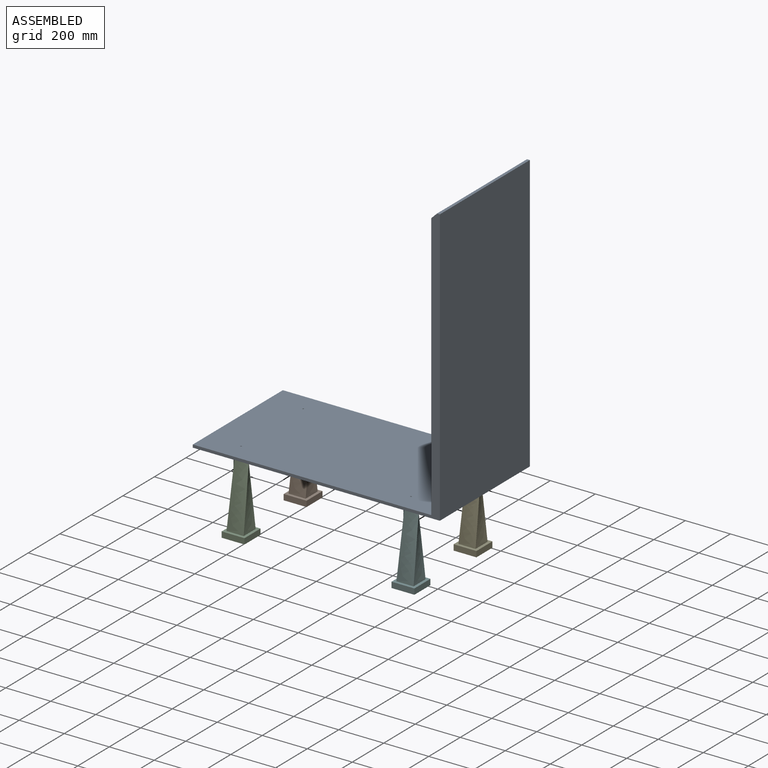
[diagram: assembled view]
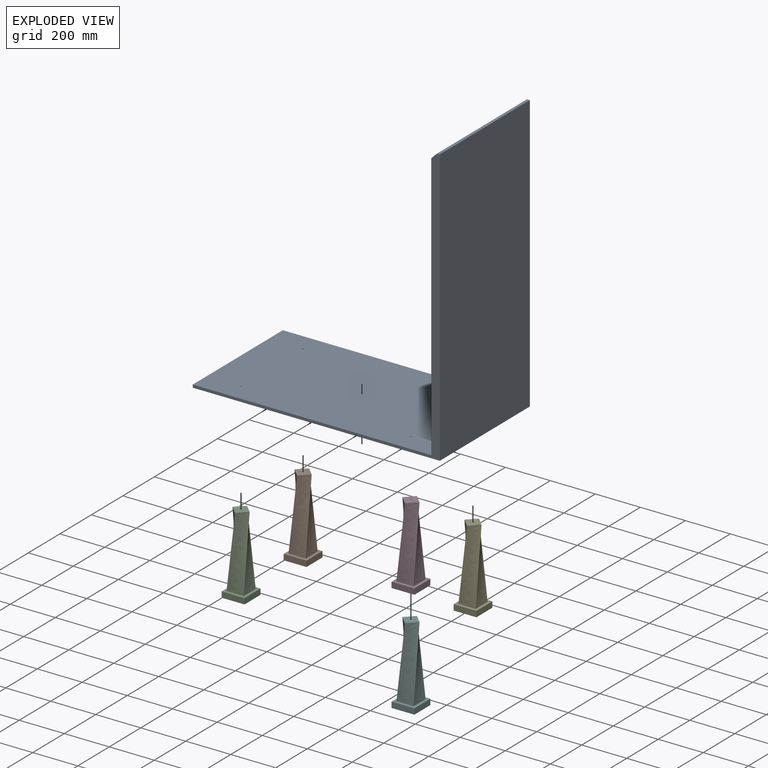
[diagram: exploded view]
GUIDED TOUR — MATED ASSEMBLY (Onshape document 288ce5ca28f0deae7e2393b2, AutoMate assembly 288ce5ca28f0deae7e2393b2_8daca769ddc02fb29a3f9f82_4f26acabc0060345b12949aa_default)

This assembly has 6 components, labeled P0..P5 below (a component is one placed occurrence of a part; the same part can appear more than once), held together by 4 mates. A mate is a constraint between two components; its type names the relative motion it leaves free:
  FASTENED — locks the two components together rigidly (no relative motion).
Axis/direction vectors are unit vectors and 'through' points are millimeter coordinates, both in the assembly's world frame.

MATES
  1. FASTENED "Fastened 2": P1 <-> P0, direction (0.000, 0.000, 1.000) through (-1217.61, 255.87, 368.35) mm
  2. FASTENED "Fastened 3": P0 <-> P5, direction (0.000, 0.000, -1.000) through (-462.42, -137.83, 368.35) mm
  3. FASTENED "Fastened 1": P2 <-> P0, direction (0.000, 0.000, 1.000) through (-1217.61, -137.83, 368.35) mm
  4. FASTENED "Fastened 4": P4 <-> P0, direction (0.000, 0.000, 1.000) through (-462.42, 255.87, 368.35) mm

ASSEMBLY ORDER
  1. P3 — the base component [order heuristic]
  2. P5 — core [order heuristic]
  3. P2 [order verified]
  4. P1 [order verified]
  5. P4 [order verified]
  6. P0 [order verified]
Order-tag legend:
  [order verified] — this step's position reverses a verified removal order: the component was checked to insert without passing through the ones already placed.
  [order heuristic] — the first 2 components form the assembly's core: parts whose collision-free extraction could not be verified, listed in mate-graph order.

Of the 6 components, 1 carries the full construction recipe — the FeatureScript program that regenerates the part's solid from scratch; the rest are supplied as boundary geometry only.
Each toured component is shown spotlighted twice — in the assembled view, then in the exploded view, where a leader line traces a displaced component back to its assembled socket (saturated green if recipe-attached, orange if geometry-only; every other component desaturated gray) — followed by its recipe or geometry summary and the mates that hold it.
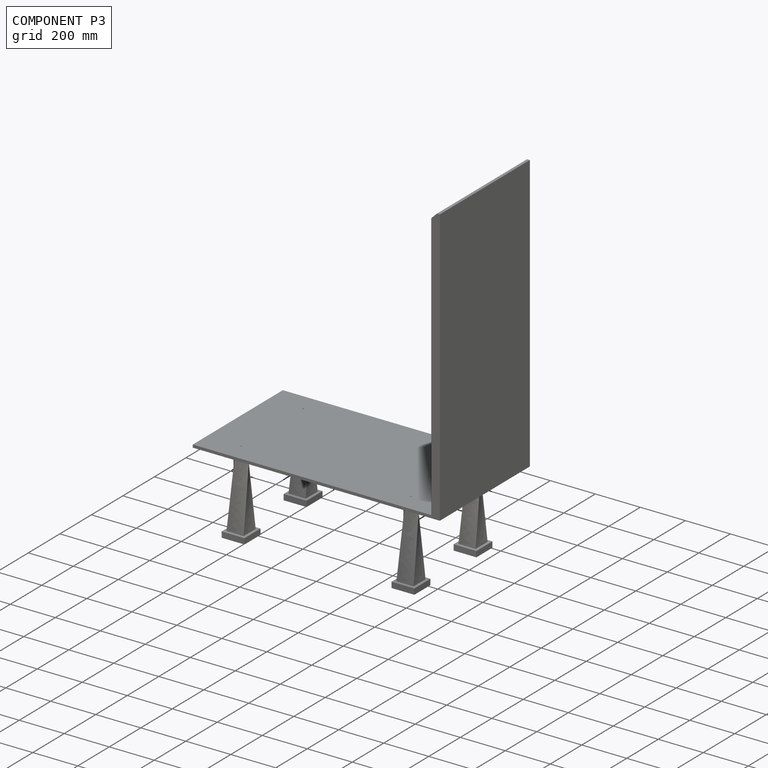
[diagram: component P3 — assembled]
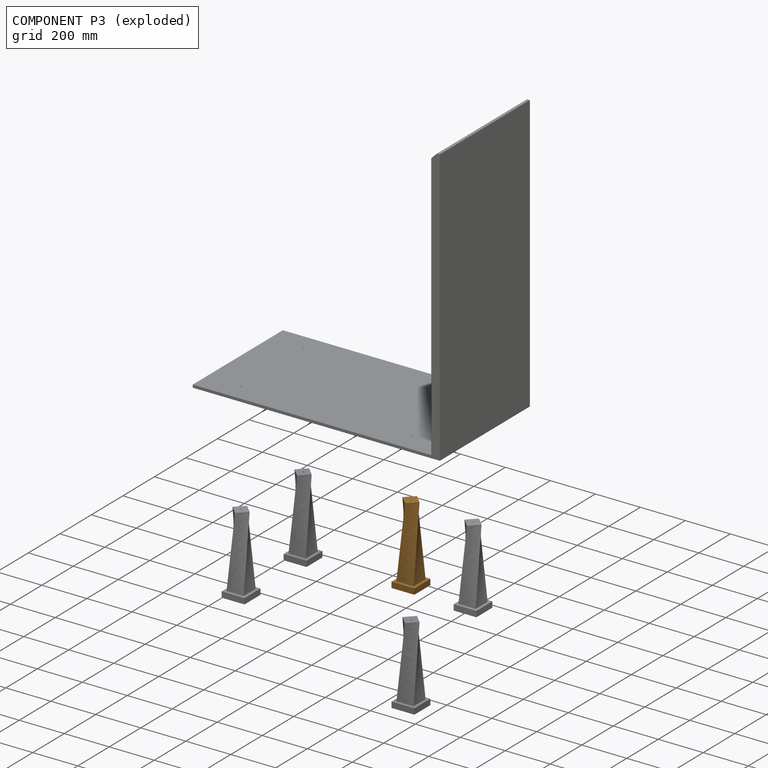
[diagram: component P3 — exploded]
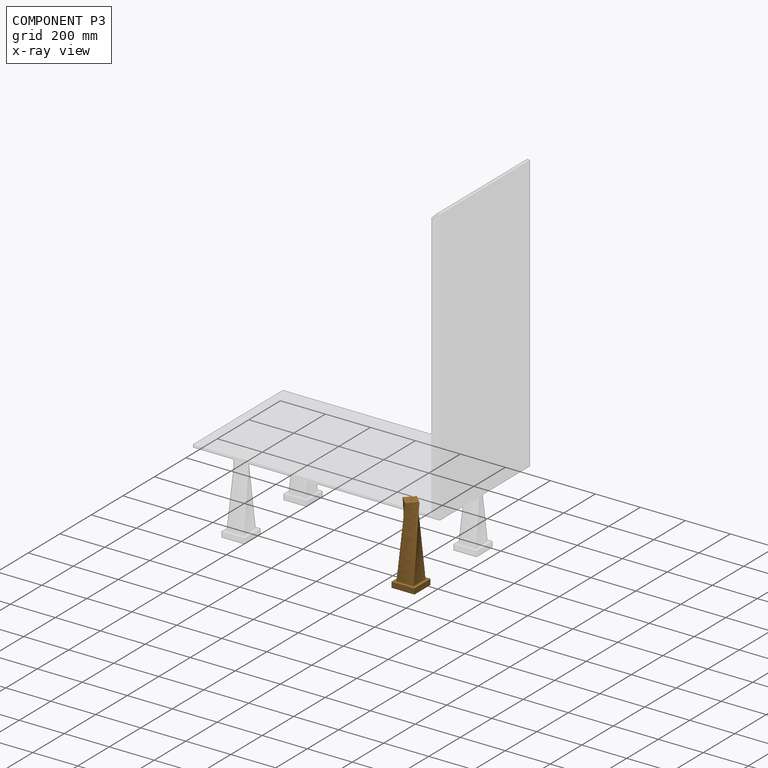
[diagram: component P3 — x-ray view]
COMPONENT P3 — geometry summary (no construction recipe available for this part):
  bounding box: 349.3 x 101.6 x 101.6 mm
  B-rep topology: 1 solid, 15 faces, 66 edges
  volume: 1514154 mm^3 (42% of its bounding box)
  symmetry: 4-fold rotationally symmetric about the z axis
Held by: no mates (free).
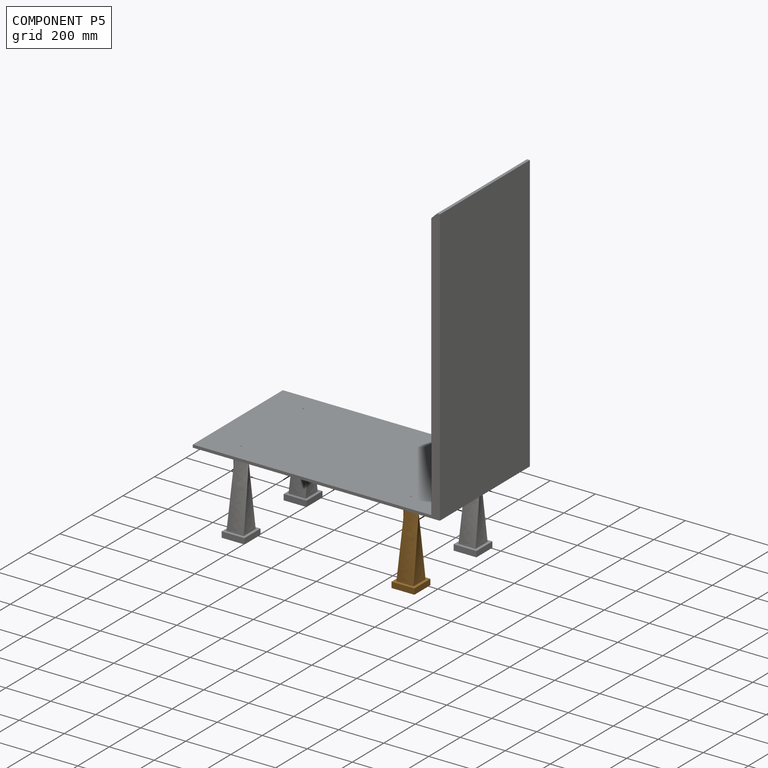
[diagram: component P5 — assembled]
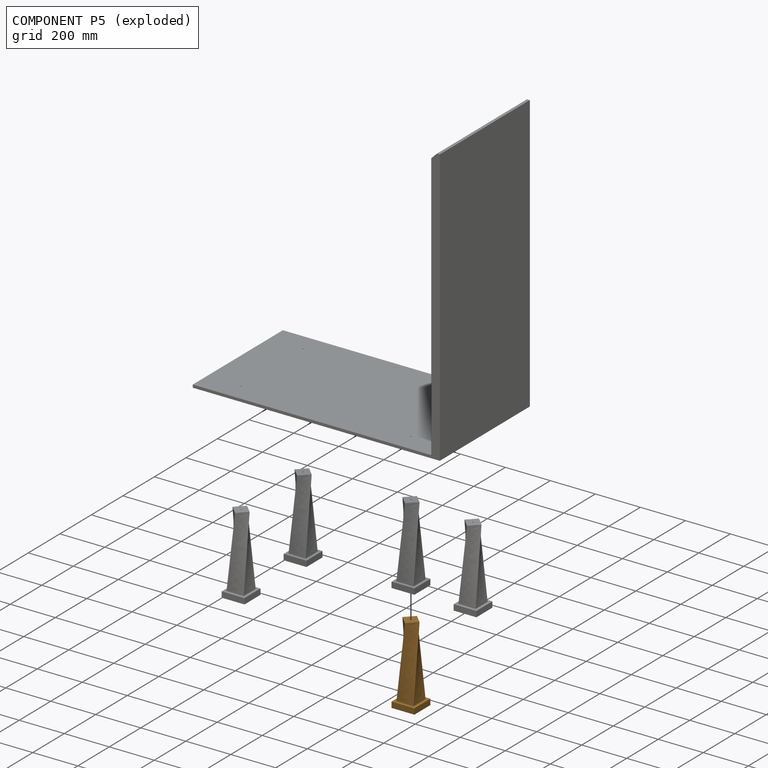
[diagram: component P5 — exploded]
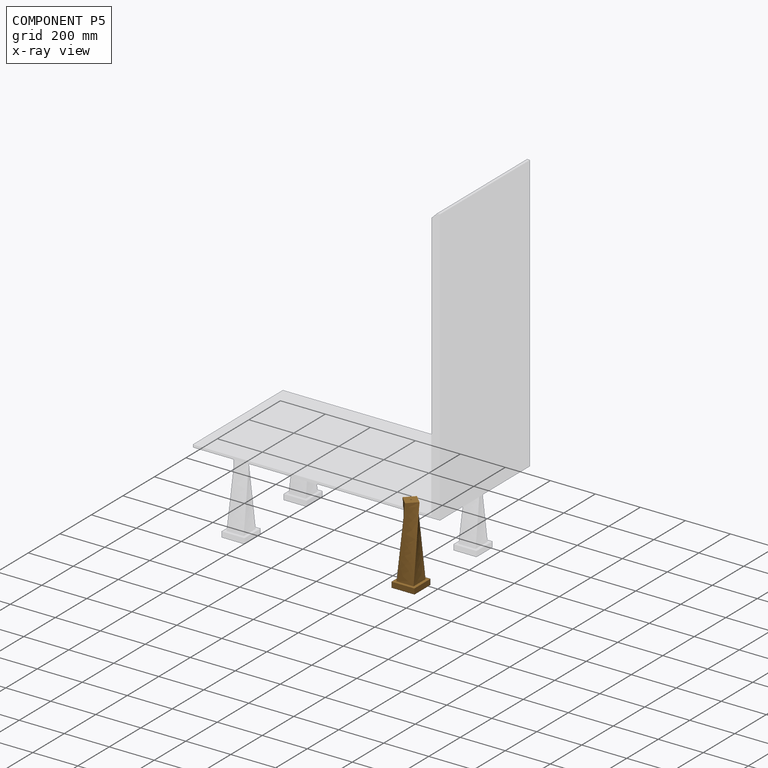
[diagram: component P5 — x-ray view]
COMPONENT P5 — geometry summary (no construction recipe available for this part):
  bounding box: 349.3 x 101.6 x 101.6 mm
  B-rep topology: 1 solid, 15 faces, 66 edges
  volume: 1514154 mm^3 (42% of its bounding box)
  symmetry: 4-fold rotationally symmetric about the z axis
Held by: FASTENED mate "Fastened 3" to P0.
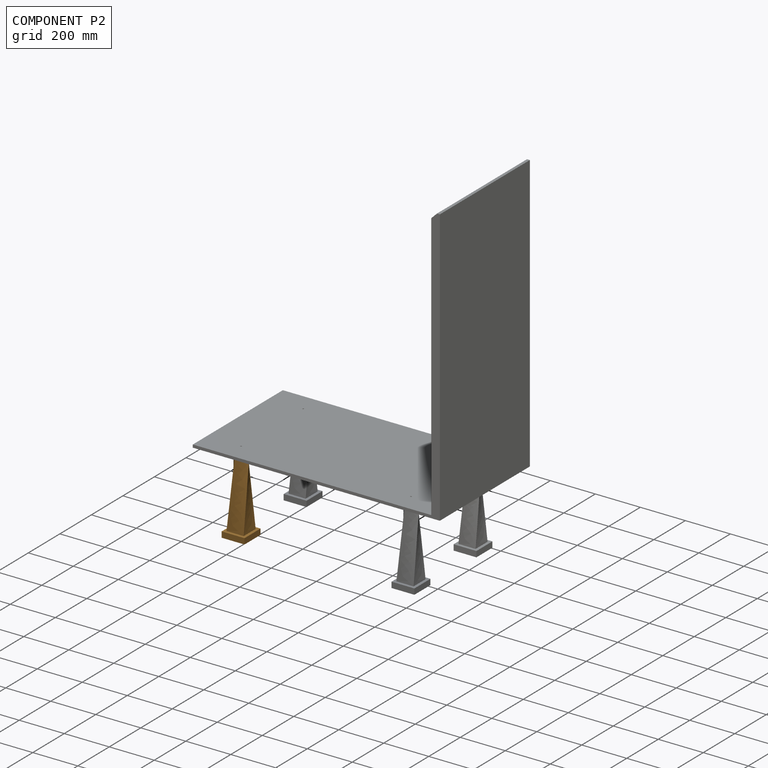
[diagram: component P2 — assembled]
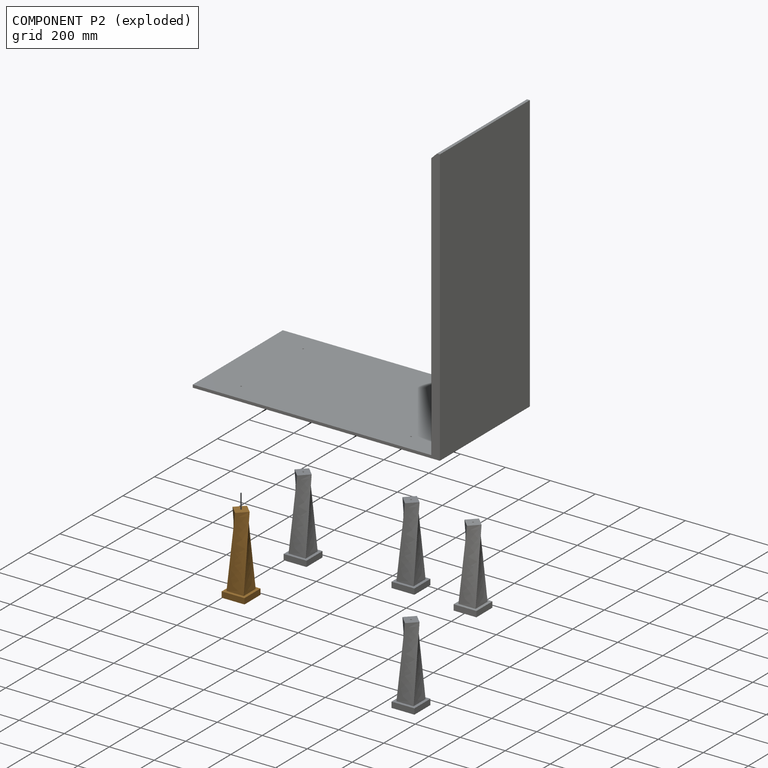
[diagram: component P2 — exploded]
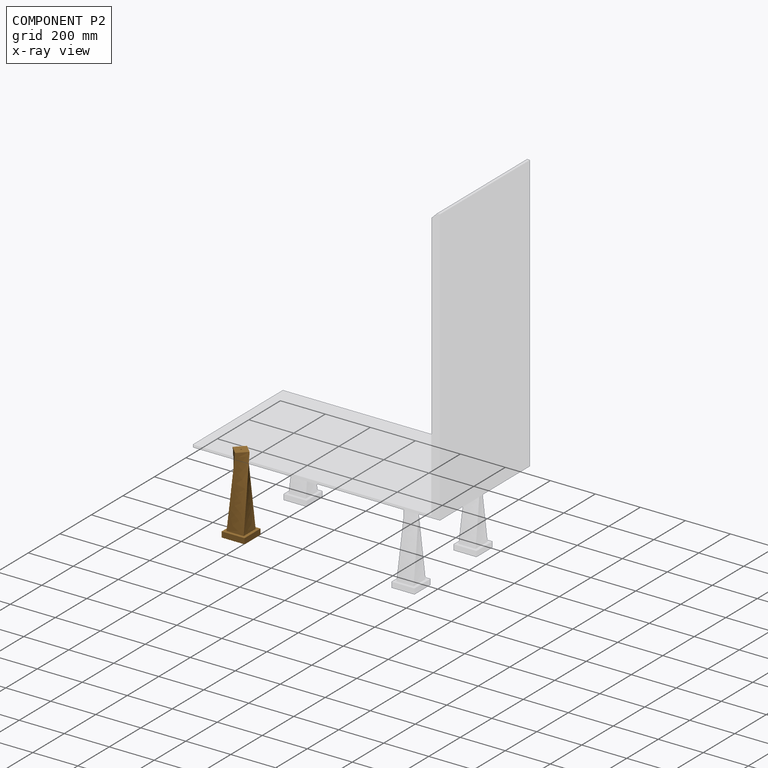
[diagram: component P2 — x-ray view]
COMPONENT P2 — geometry summary (no construction recipe available for this part):
  bounding box: 349.3 x 101.6 x 101.6 mm
  B-rep topology: 1 solid, 15 faces, 66 edges
  volume: 1514154 mm^3 (42% of its bounding box)
  symmetry: 4-fold rotationally symmetric about the z axis
Held by: FASTENED mate "Fastened 1" to P0.
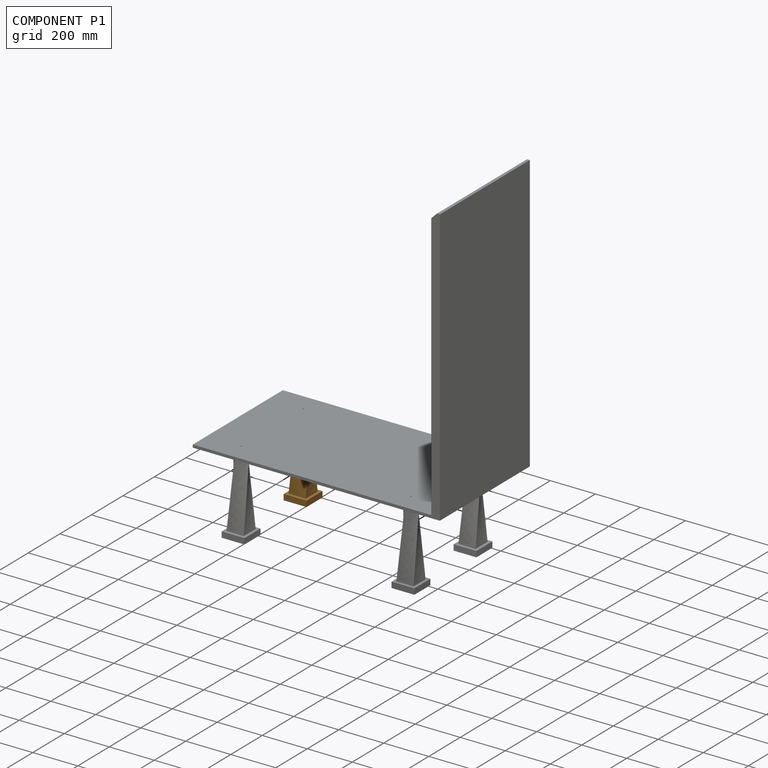
[diagram: component P1 — assembled]
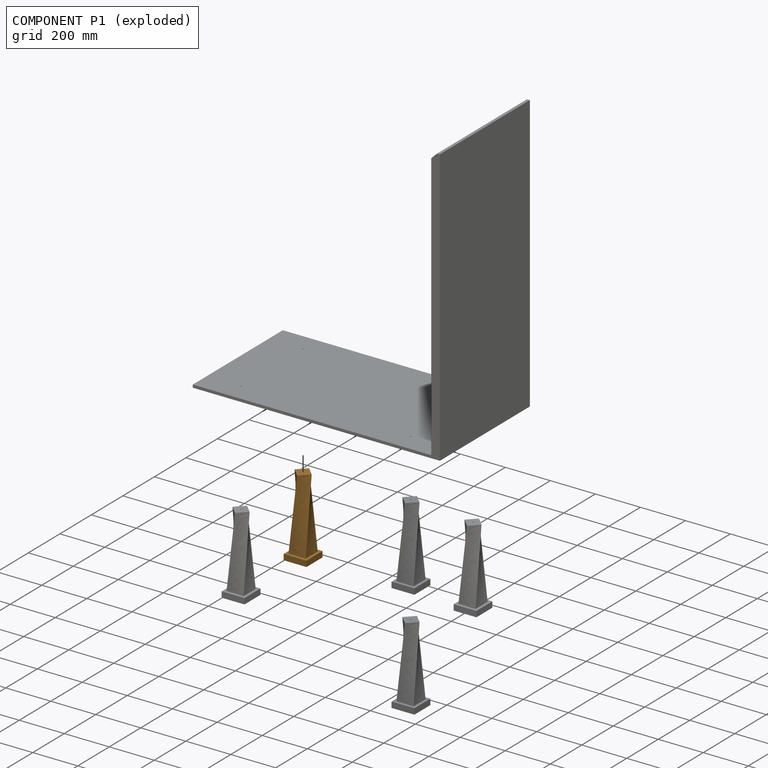
[diagram: component P1 — exploded]
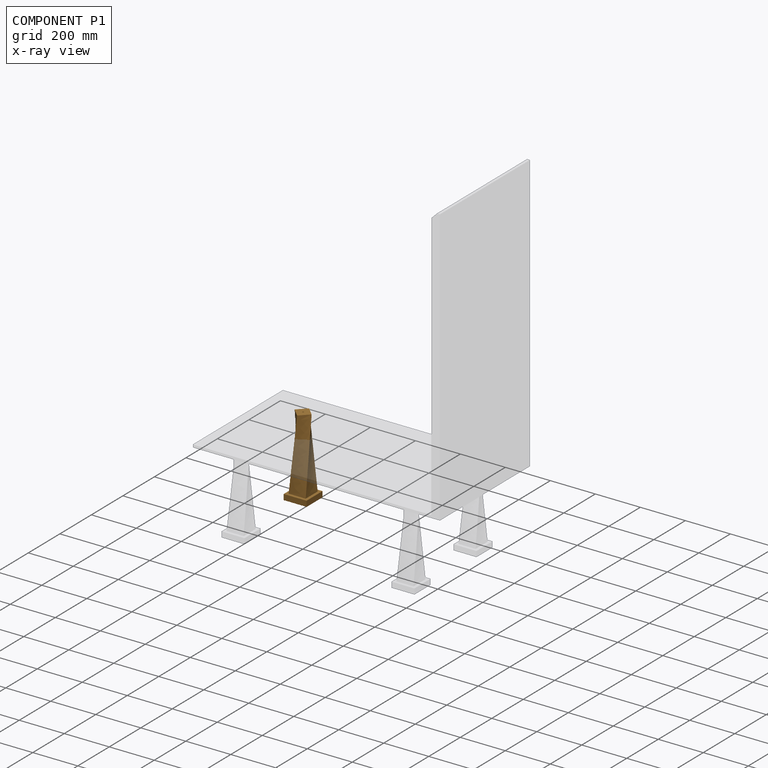
[diagram: component P1 — x-ray view]
COMPONENT P1 — geometry summary (no construction recipe available for this part):
  bounding box: 349.3 x 101.6 x 101.6 mm
  B-rep topology: 1 solid, 15 faces, 66 edges
  volume: 1514154 mm^3 (42% of its bounding box)
  symmetry: 4-fold rotationally symmetric about the z axis
Held by: FASTENED mate "Fastened 2" to P0.
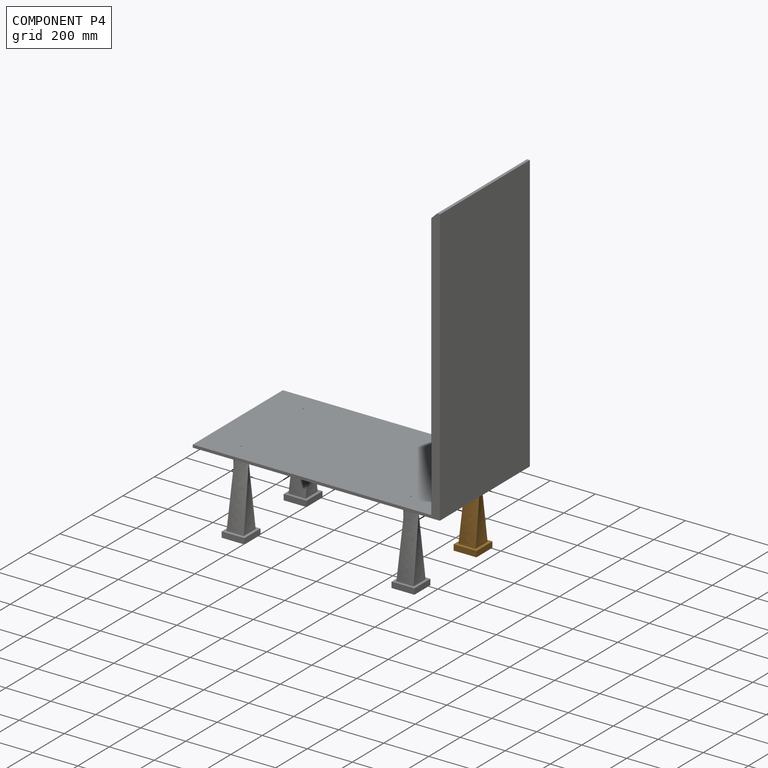
[diagram: component P4 — assembled]
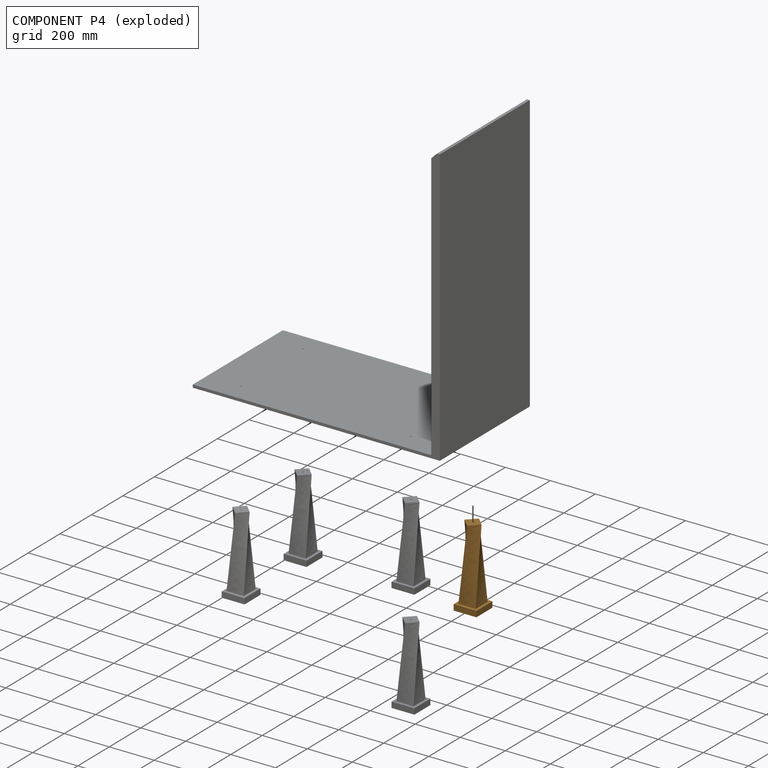
[diagram: component P4 — exploded]
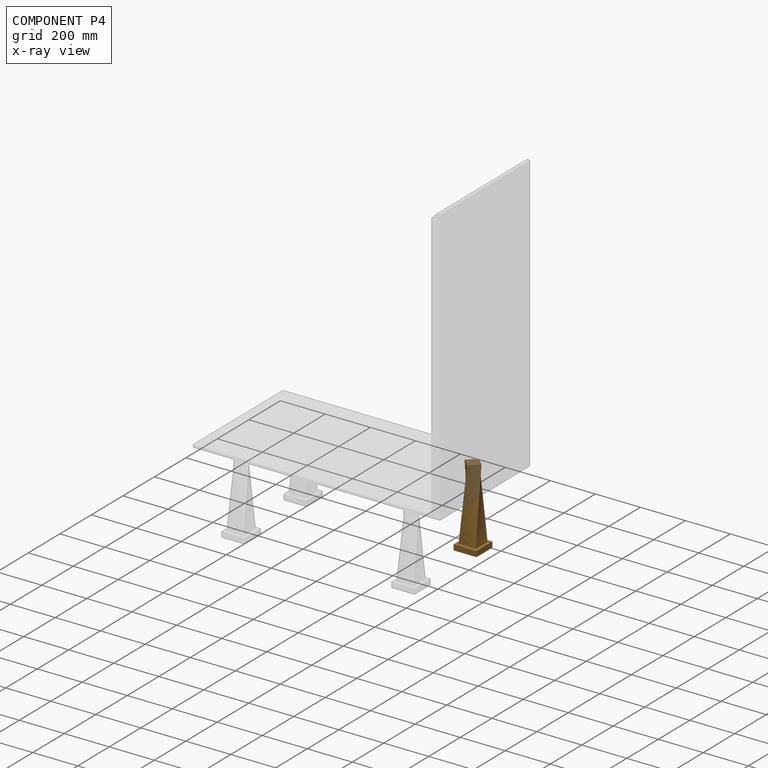
[diagram: component P4 — x-ray view]
COMPONENT P4 — geometry summary (no construction recipe available for this part):
  bounding box: 349.3 x 101.6 x 101.6 mm
  B-rep topology: 1 solid, 15 faces, 66 edges
  volume: 1514154 mm^3 (42% of its bounding box)
  symmetry: 4-fold rotationally symmetric about the z axis
Held by: FASTENED mate "Fastened 4" to P0.
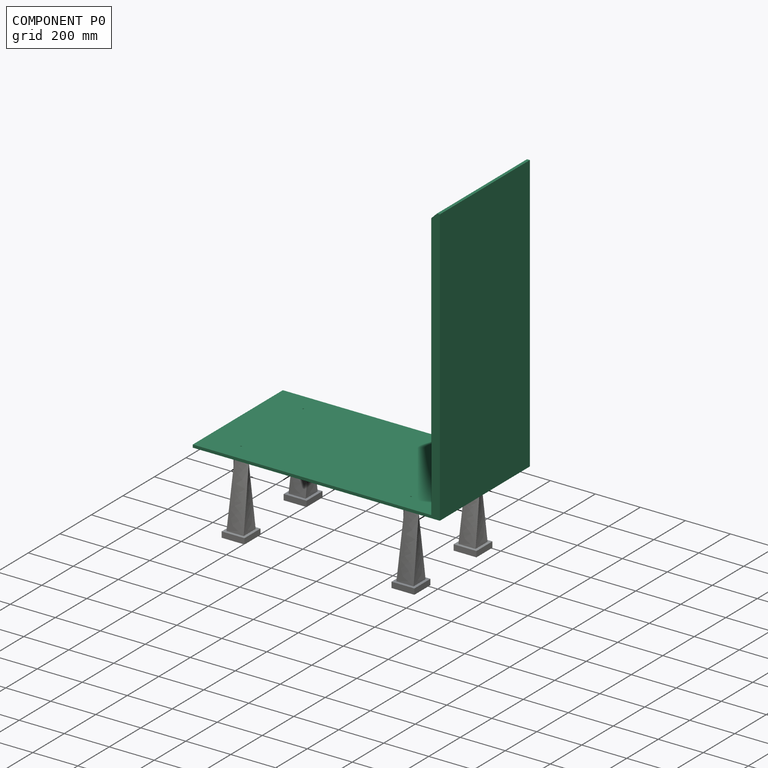
[diagram: component P0 — assembled]
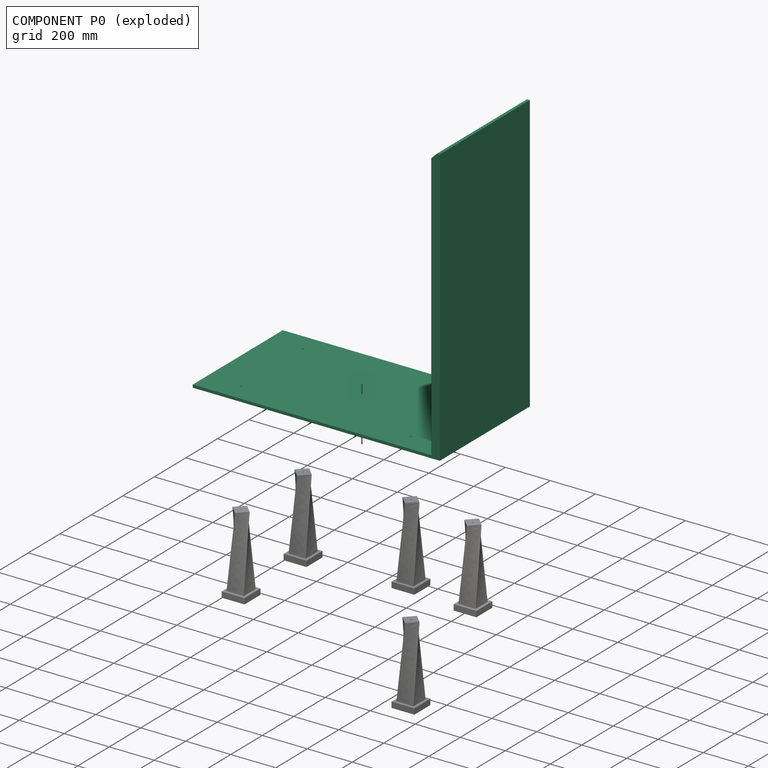
[diagram: component P0 — exploded]
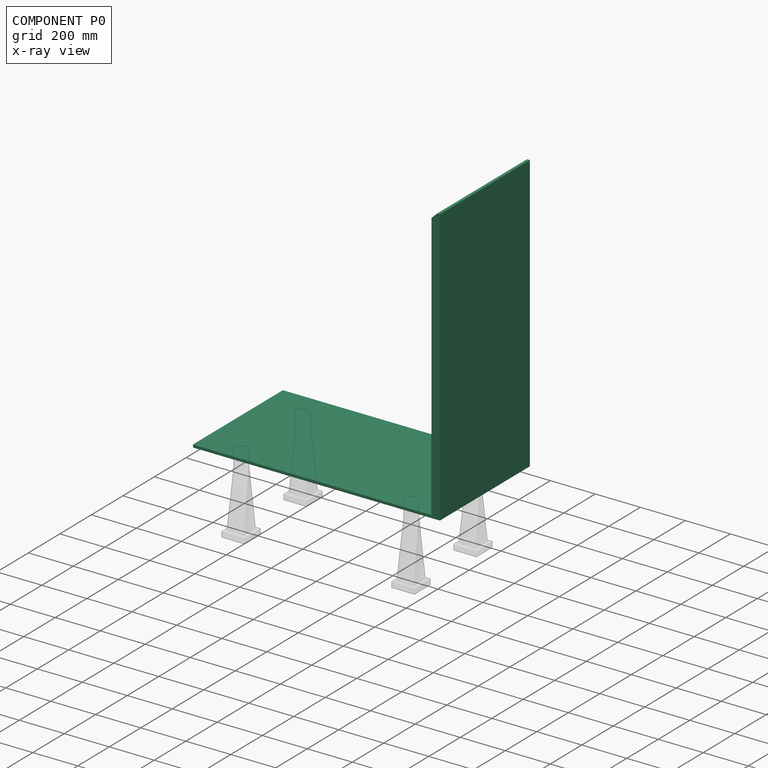
[diagram: component P0 — x-ray view]
COMPONENT P0 — recipe-attached (CADFS 00300701, mesh-verified: the recipe's output STEP matches this component's geometry to below the mesh-comparison resolution (tessellation chordal tolerance ~2.62 mm)).
Held by: FASTENED mate "Fastened 2" to P1; FASTENED mate "Fastened 3" to P5; FASTENED mate "Fastened 1" to P2; FASTENED mate "Fastened 4" to P4.
Construction recipe (FeatureScript — the CAD program that rebuilds this solid; sketch coordinates are in the units given by the * unit suffixes, e.g. mm):

FeatureScript 1511;
import(path : "onshape/std/geometry.fs", version : "1511.0");
import(path : "onshape/std/common.fs", version : "1511.0");
const mm = millimeter;
const VERTEX = EntityType.VERTEX;
const EDGE = EntityType.EDGE;
const FACE = EntityType.FACE;
const BODY = EntityType.BODY;
function v(x, y){return vector(x, y);}
function OD(order){return orderDisambiguation(order);}
function OSD(set){return originalSetDisambiguation(set);}
function TD(topology){return topologyDisambiguation(topology);}
function TDD(query){return trueDependencyDisambiguation(query);}
function sQuery(a, b, c) {return sketchEntityQuery(a, b, c);}

annotation { "Feature Type Name" : "Feature", "Feature Type Description" : "" }
export const myFeature = defineFeature(function(context is Context, id is Id, definition is map)
    precondition{}
    {
        {
            var Q0;
            Q0=qCreatedBy(makeId("Top.planeOp"),FACE);
            var sketch = newSketch(context, id + "F0", { "sketchPlane" : qUnion([Q0])});
            skLineSegment(sketch, "E0", {"start": v(0, 0) * mm, "end": v(1098.1, 0) * mm});
            skLineSegment(sketch, "E1", {"start": v(1098.1, 0) * mm, "end": v(1098.1, 571.5) * mm});
            skLineSegment(sketch, "E2", {"start": v(1098.1, 571.5) * mm, "end": v(0, 571.5) * mm});
            skLineSegment(sketch, "E3", {"start": v(0, 571.5) * mm, "end": v(0, 0) * mm});
            skPoint(sketch, "E4", {"position": v(152.4, 482.6) * mm});
            skPoint(sketch, "E5", {"position": v(907.6, 482.6) * mm});
            skPoint(sketch, "E6", {"position": v(152.4, 88.9) * mm});
            skPoint(sketch, "E7", {"position": v(907.6, 88.9) * mm});
            skSolve(sketch);
        }
        {
            var Q0;
            Q0 = qSketchRegion(id + "F0", true);
            extrude(context, id + "F1", {"entities" : qUnion([Q0]), "depth" : 12.65 * mm});
        }
        {
            var Q0;
            Q0=makeQuery(id+"F1.opExtrude","CAP_FACE",FACE,{"disambiguationData":[OSD([sQuery(id+"F0.wireOp",EDGE,"E0"),sQuery(id+"F0.wireOp",EDGE,"E1"),sQuery(id+"F0.wireOp",EDGE,"E2"),sQuery(id+"F0.wireOp",EDGE,"E3")])],"isStart":false});
            var sketch = newSketch(context, id + "F2", { "sketchPlane" : qUnion([Q0])});
            skLineSegment(sketch, "E8", {"start": v(1098.1, 571.5) * mm, "end": v(1098.1, 0) * mm});
            skLineSegment(sketch, "E9", {"start": v(1098.1, 0) * mm, "end": v(1060, 0) * mm});
            skLineSegment(sketch, "E10", {"start": v(1060, 0) * mm, "end": v(1060, 571.5) * mm});
            skLineSegment(sketch, "E11", {"start": v(1060, 571.5) * mm, "end": v(1098.1, 571.5) * mm});
            skSolve(sketch);
        }
        {
            var Q0;
            Q0 = qSketchRegion(id + "F2", true);
            extrude(context, id + "F3", {"entities" : qUnion([Q0]), "operationType" : NewBodyOperationType.ADD, "depth" : 1218.2 * mm});
        }
        {
            var Q0;
            Q0=makeQuery(id+"F3.boolean.opBoolean","MERGE",FACE,{"derivedFrom":[makeQuery(id+"F1.opExtrude","SWEPT_FACE",FACE,{"disambiguationData":[OSD([sQuery(id+"F0.wireOp",EDGE,"E0")])]}),makeQuery(id+"F3.opExtrude","SWEPT_FACE",FACE,{"disambiguationData":[OSD([sQuery(id+"F2.wireOp",EDGE,"E9")])]})]});
            var sketch = newSketch(context, id + "F4", { "sketchPlane" : qUnion([Q0])});
            skLineSegment(sketch, "E12", {"start": v(1085.4, 1230.86) * mm, "end": v(1060, 1205.46) * mm});
            skSolve(sketch);
        }
        {
            var Q0;
            Q0 = qSketchRegion(id + "F4", true);
            var Q1;
            {var subQ0=sQuery(id+"F4.wireOp",EDGE,"E12");Q1=makeQuery(id+"F4.imprint","IMPRINT",FACE,{"disambiguationData":[TD([[makeQuery(id+"F4.imprint","IMPRINT",EDGE,{"derivedFrom":subQ0}),-1.0]])]});}
            extrude(context, id + "F5", {"entities" : qUnion([Q0, Q1]), "operationType" : NewBodyOperationType.REMOVE, "oppositeDirection" : true, "depth" : 1270 * mm});
        }
        {
            var Q0;
            Q0=sQuery(id+"F0.wireOp",VERTEX,"E4");
            var Q1;
            Q1=sQuery(id+"F0.wireOp",VERTEX,"E5");
            var Q2;
            Q2=sQuery(id+"F0.wireOp",VERTEX,"E7");
            var Q3;
            Q3=sQuery(id+"F0.wireOp",VERTEX,"E6");
            var Q4;
            Q4=makeQuery(id+"F1.opExtrude","SWEPT_BODY",BODY,{"disambiguationData":[OSD([sQuery(id+"F0.wireOp",EDGE,"E0"),sQuery(id+"F0.wireOp",EDGE,"E1"),sQuery(id+"F0.wireOp",EDGE,"E2"),sQuery(id+"F0.wireOp",EDGE,"E3")])]});
            hole(context, id + "F6", {"style" : HoleStyle.SIMPLE, "endStyle" : HoleEndStyle.BLIND, "oppositeDirection" : true, "holeDiameter" : 6.35 * mm, "holeDepth" : 25.4 * mm, "tappedDepth" : 12.7 * mm, "tapClearance" : 3, "locations" : qUnion([Q0, Q1, Q2, Q3]), "scope" : qUnion([Q4])});
        }
    });
PROVENANCE & LICENSES
Assembly (occurrences, transforms, mates, per-part STEP geometry): AutoMate dataset, Zenodo record 7776208, CC0.
Construction recipes: CADFS (HuggingFace VladPyatov/CADFS, CC-BY-4.0, layered over the ABC dataset), FeatureScript reconstruction programs keyed by ABC model id.
Join: ABC meta listings map ABC model id -> Onshape documentId; within a shared document, parts are matched by geometric signature (bounding-box dims + volume at 0.1% relative tolerance, exact B-rep face/solid counts).
Verification: 1 of this assembly's 6 components carries a recipe attachment, and every attachment is mesh-verified: the CADFS STEP and the AutoMate member STEP were compared as meshes in their shared local frame (symmetric sampled-point-to-mesh distance); worst across the 1 attachment: below the mesh-comparison resolution (tessellation chordal tolerance ~2.62 mm) on a 1746 mm part.
Renders: orthographic iso camera (az 35 / el 25); the floor grid conveys scale (grid pitch printed in each image; no ruler). In the exploded view each component is displaced by its stored offset vector: the offsets alone carry the explosion direction (mate normal/axis signs are not orientation cues and do not encode it), and separation distances are assigned per mate-chain, not proportionally to assembly-order depth.
